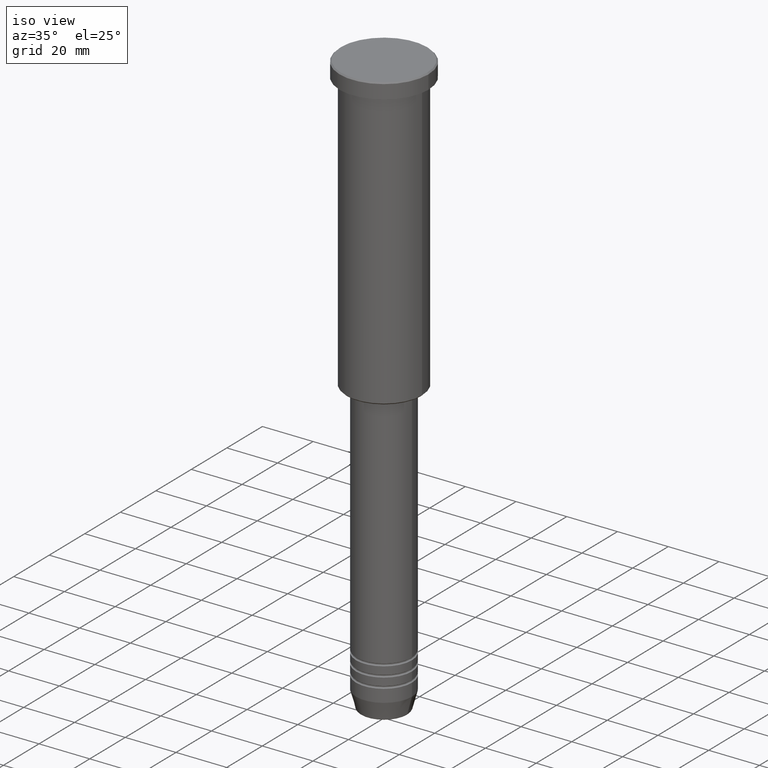
[diagram: clean part render]
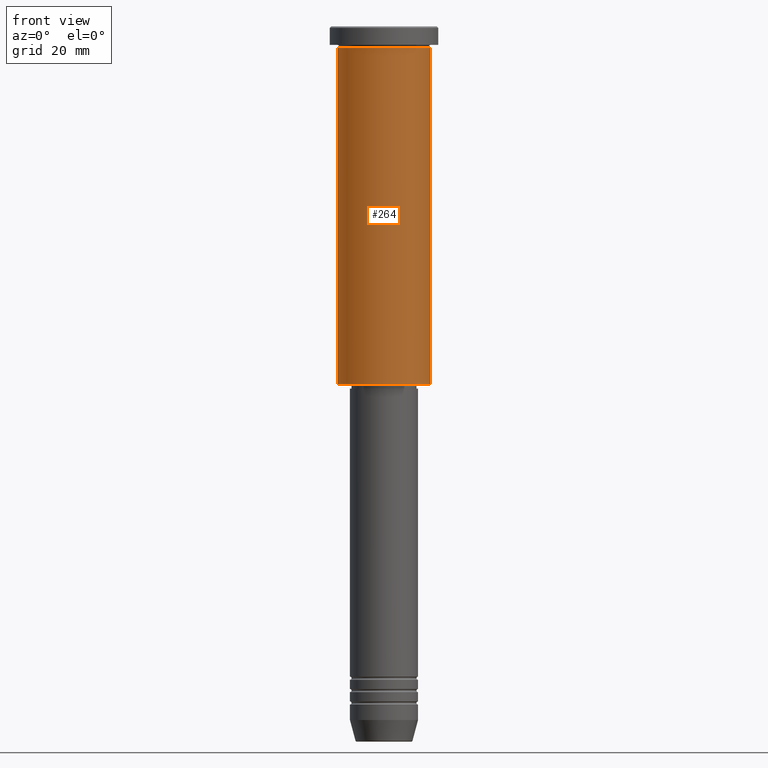
[diagram: tour spotlight — one face highlighted and labeled with its STEP entity id]
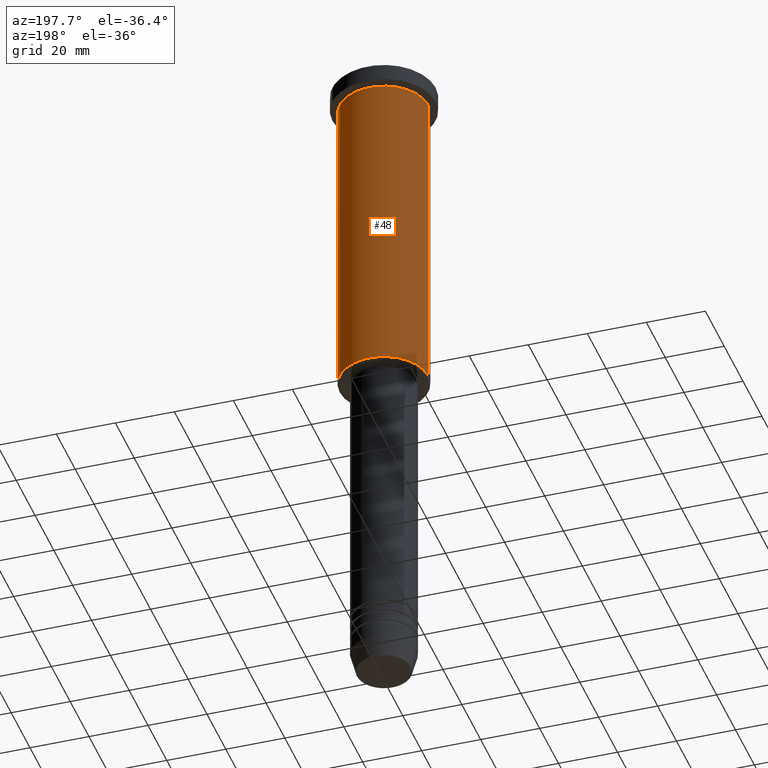
[diagram: tour spotlight — one face highlighted and labeled with its STEP entity id]
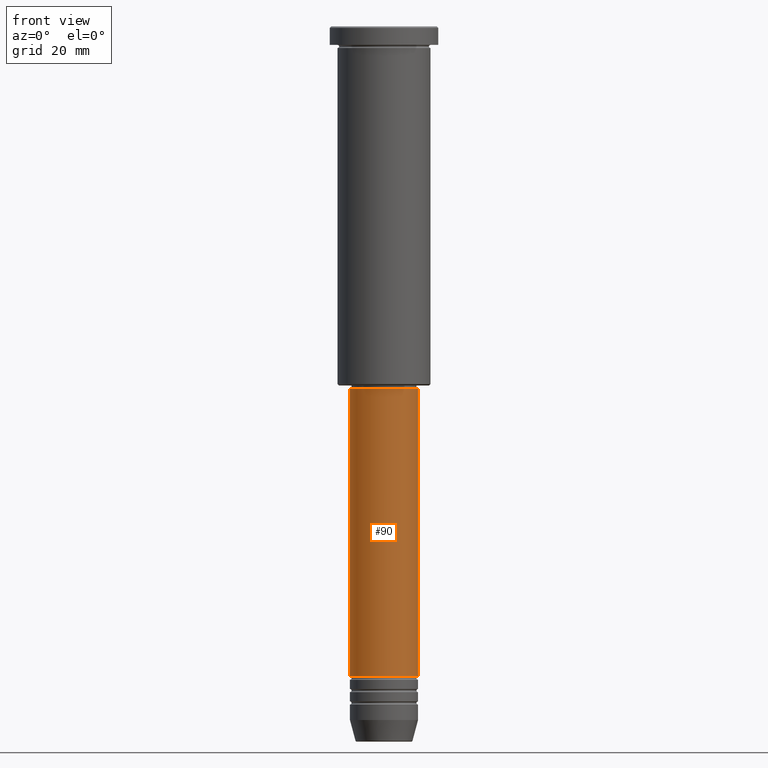
[diagram: tour spotlight — one face highlighted and labeled with its STEP entity id]
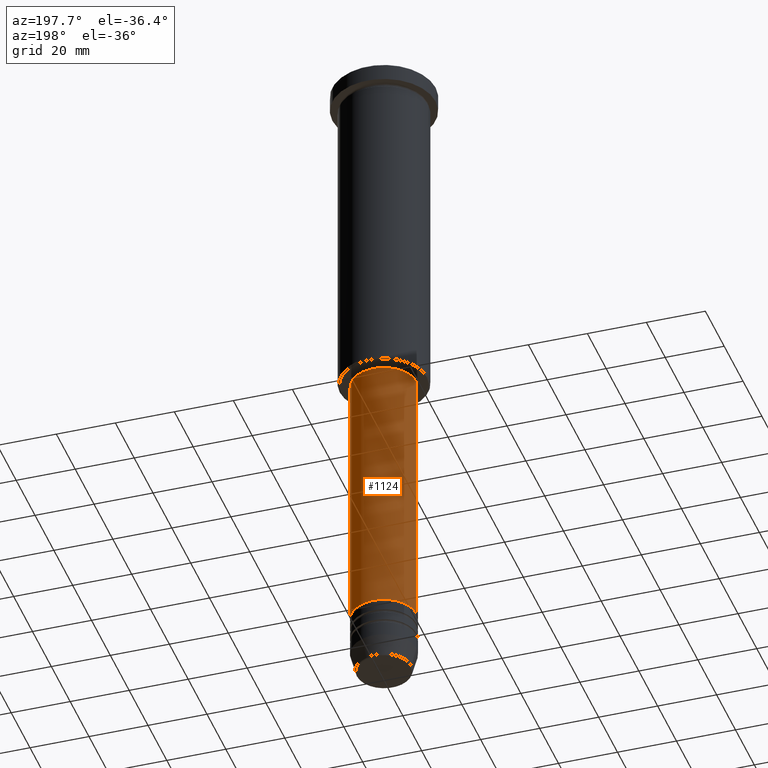
[diagram: tour spotlight — one face highlighted and labeled with its STEP entity id]
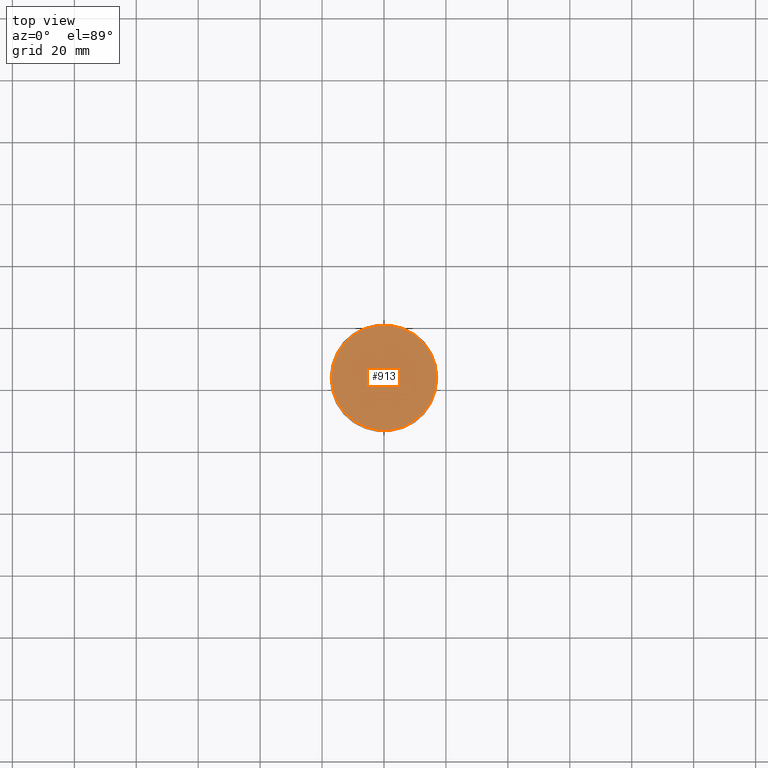
[diagram: tour spotlight — one face highlighted and labeled with its STEP entity id]
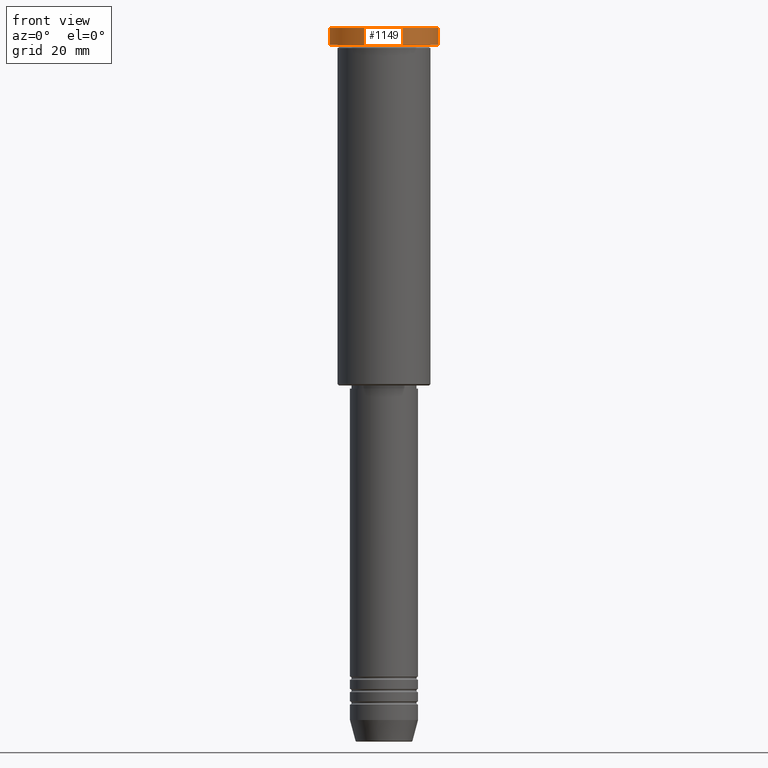
[diagram: tour spotlight — one face highlighted and labeled with its STEP entity id]
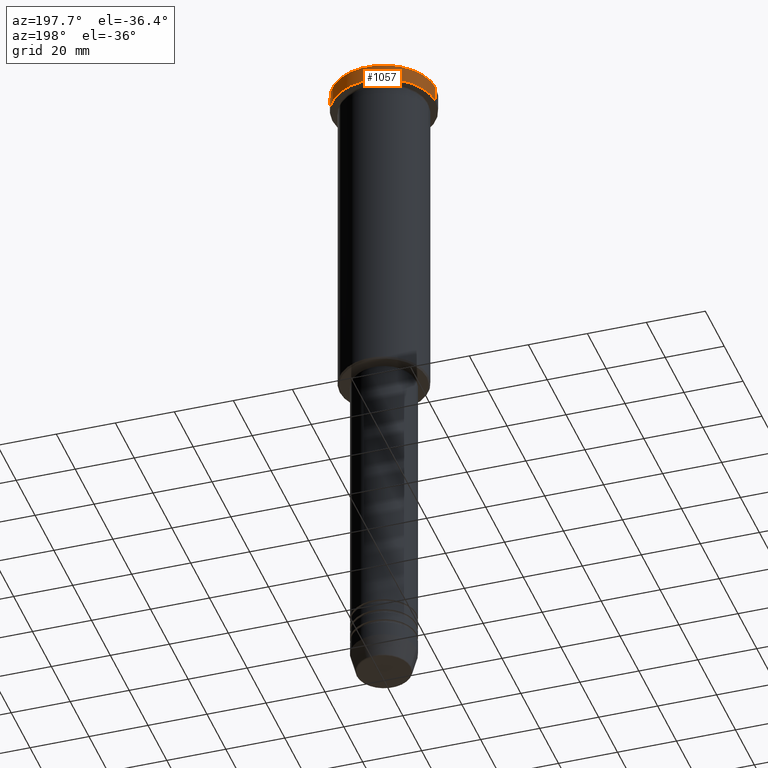
[diagram: tour spotlight — one face highlighted and labeled with its STEP entity id]
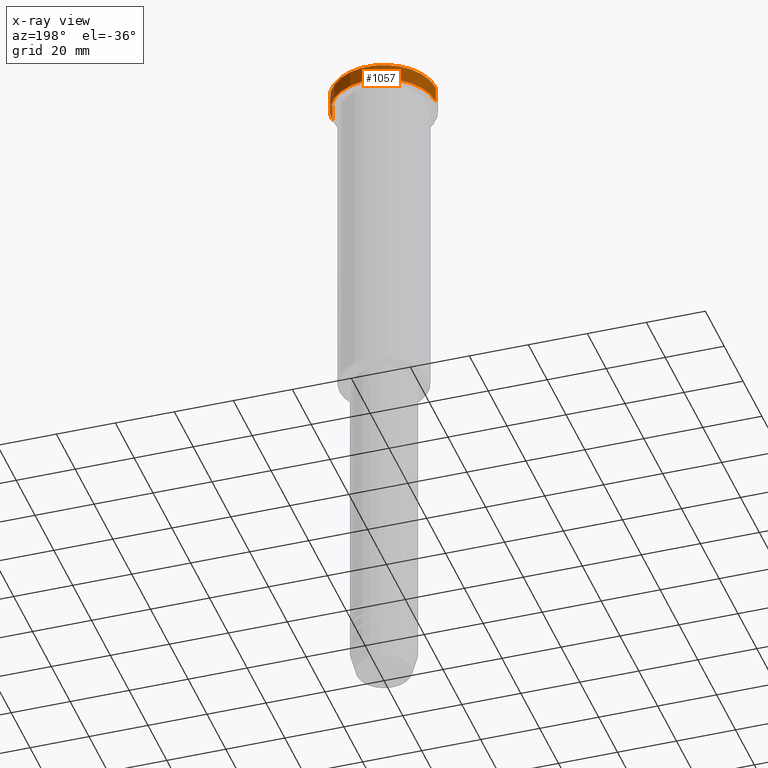
[diagram: x-ray of the same camera — body ghosted, this tour face saturated]
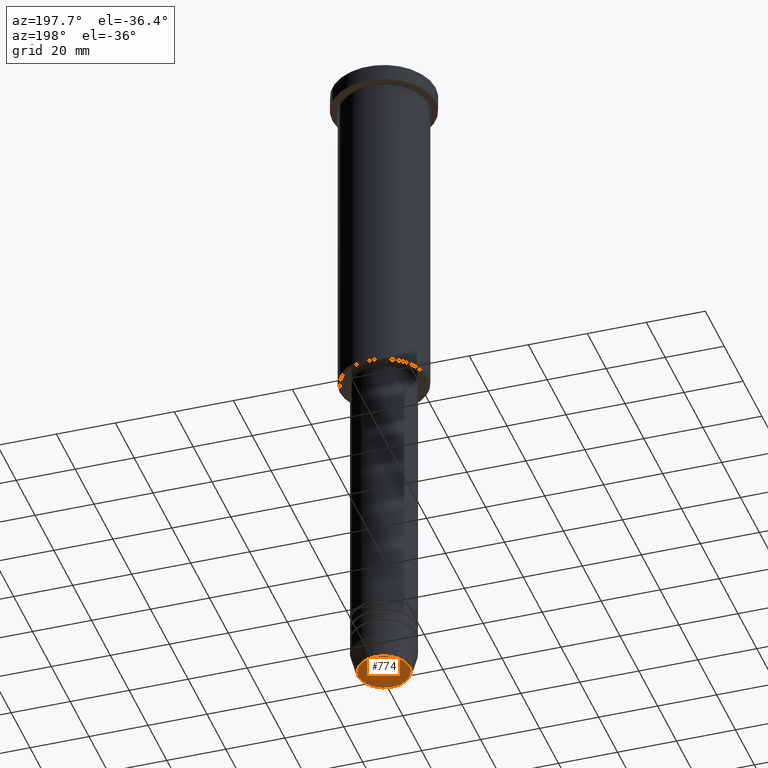
[diagram: tour spotlight — one face highlighted and labeled with its STEP entity id]
A machine part: a face-by-face anatomy tour. The part has 43 B-rep faces; the first image is the clean iso view, then the 8 largest visible faces are spotlighted one at a time (largest first), each with its STEP entity span.

Face 1 — front view, entity #264. In plain terms, the highlighted cylindrical surface (partial cylindrical patch) has radius 15 mm, axis along (-0, -0, 1).
Definition (entity closure, byte-faithful):
#30 = ORIENTED_EDGE ( 'NONE', *, *, #914, .T. ) ;
#60 = ORIENTED_EDGE ( 'NONE', *, *, #135, .F. ) ;
#66 = DIRECTION ( 'NONE',  ( 1.000000000000000000, 0.000000000000000000, 0.000000000000000000 ) ) ;
#101 = DIRECTION ( 'NONE',  ( 1.000000000000000000, 0.000000000000000000, 0.000000000000000000 ) ) ;
#117 = LINE ( 'NONE', #792, #209 ) ;
#135 = EDGE_CURVE ( 'NONE', #504, #207, #117, .T. ) ;
#207 = VERTEX_POINT ( 'NONE', #684 ) ;
#209 = VECTOR ( 'NONE', #862, 1000.000000000000000 ) ;
#213 = AXIS2_PLACEMENT_3D ( 'NONE', #466, #873, #1024 ) ;
#264 = ADVANCED_FACE ( 'NONE', ( #519 ), #906, .T. ) ;
#326 = ORIENTED_EDGE ( 'NONE', *, *, #907, .T. ) ;
#328 = CIRCLE ( 'NONE', #213, 15.00000000000000000 ) ;
#357 = AXIS2_PLACEMENT_3D ( 'NONE', #706, #984, #66 ) ;
#422 = EDGE_CURVE ( 'NONE', #207, #1153, #1068, .T. ) ;
#466 = CARTESIAN_POINT ( 'NONE',  ( 0.000000000000000000, 0.000000000000000000, -115.5000000000000000 ) ) ;
#485 = LINE ( 'NONE', #771, #679 ) ;
#487 = ORIENTED_EDGE ( 'NONE', *, *, #422, .F. ) ;
#504 = VERTEX_POINT ( 'NONE', #687 ) ;
#519 = FACE_OUTER_BOUND ( 'NONE', #978, .T. ) ;
#649 = DIRECTION ( 'NONE',  ( -0.000000000000000000, -0.000000000000000000, 1.000000000000000000 ) ) ;
#679 = VECTOR ( 'NONE', #1143, 1000.000000000000000 ) ;
#684 = CARTESIAN_POINT ( 'NONE',  ( -15.00000000000000000, 1.836970198721029589E-15, -6.999999999999995559 ) ) ;
#687 = CARTESIAN_POINT ( 'NONE',  ( -15.00000000000000000, 1.836970198721029589E-15, -115.5000000000000000 ) ) ;
#706 = CARTESIAN_POINT ( 'NONE',  ( 0.000000000000000000, 0.000000000000000000, 0.000000000000000000 ) ) ;
#771 = CARTESIAN_POINT ( 'NONE',  ( 15.00000000000000000, 0.000000000000000000, 0.000000000000000000 ) ) ;
#792 = CARTESIAN_POINT ( 'NONE',  ( -15.00000000000000000, 1.836970198721029589E-15, 0.000000000000000000 ) ) ;
#862 = DIRECTION ( 'NONE',  ( -0.000000000000000000, -0.000000000000000000, 1.000000000000000000 ) ) ;
#873 = DIRECTION ( 'NONE',  ( -0.000000000000000000, -0.000000000000000000, 1.000000000000000000 ) ) ;
#904 = CARTESIAN_POINT ( 'NONE',  ( 15.00000000000000000, 0.000000000000000000, -115.5000000000000000 ) ) ;
#906 = CYLINDRICAL_SURFACE ( 'NONE', #357, 15.00000000000000000 ) ;
#907 = EDGE_CURVE ( 'NONE', #1139, #1153, #485, .T. ) ;
#914 = EDGE_CURVE ( 'NONE', #504, #1139, #328, .T. ) ;
#978 = EDGE_LOOP ( 'NONE', ( #60, #30, #326, #487 ) ) ;
#984 = DIRECTION ( 'NONE',  ( -0.000000000000000000, -0.000000000000000000, 1.000000000000000000 ) ) ;
#1022 = CARTESIAN_POINT ( 'NONE',  ( 0.000000000000000000, 0.000000000000000000, -6.999999999999995559 ) ) ;
#1024 = DIRECTION ( 'NONE',  ( -1.000000000000000000, 0.000000000000000000, 0.000000000000000000 ) ) ;
#1068 = CIRCLE ( 'NONE', #1090, 15.00000000000000000 ) ;
#1090 = AXIS2_PLACEMENT_3D ( 'NONE', #1022, #649, #101 ) ;
#1139 = VERTEX_POINT ( 'NONE', #904 ) ;
#1143 = DIRECTION ( 'NONE',  ( -0.000000000000000000, -0.000000000000000000, 1.000000000000000000 ) ) ;
#1153 = VERTEX_POINT ( 'NONE', #1179 ) ;
#1179 = CARTESIAN_POINT ( 'NONE',  ( 15.00000000000000000, 0.000000000000000000, -6.999999999999995559 ) ) ;

Face 2 — auxiliary view, entity #48. In plain terms, the highlighted cylindrical surface (partial cylindrical patch) has radius 15 mm, axis along (-0, -0, 1).
Definition (entity closure, byte-faithful):
#3 = DIRECTION ( 'NONE',  ( -0.000000000000000000, -0.000000000000000000, 1.000000000000000000 ) ) ;
#48 = ADVANCED_FACE ( 'NONE', ( #845 ), #198, .T. ) ;
#51 = EDGE_CURVE ( 'NONE', #1153, #207, #1074, .T. ) ;
#81 = ORIENTED_EDGE ( 'NONE', *, *, #471, .T. ) ;
#117 = LINE ( 'NONE', #792, #209 ) ;
#135 = EDGE_CURVE ( 'NONE', #504, #207, #117, .T. ) ;
#184 = CARTESIAN_POINT ( 'NONE',  ( 0.000000000000000000, 0.000000000000000000, 0.000000000000000000 ) ) ;
#198 = CYLINDRICAL_SURFACE ( 'NONE', #787, 15.00000000000000000 ) ;
#207 = VERTEX_POINT ( 'NONE', #684 ) ;
#209 = VECTOR ( 'NONE', #862, 1000.000000000000000 ) ;
#365 = DIRECTION ( 'NONE',  ( 1.000000000000000000, 0.000000000000000000, 0.000000000000000000 ) ) ;
#449 = CARTESIAN_POINT ( 'NONE',  ( 0.000000000000000000, 0.000000000000000000, -6.999999999999995559 ) ) ;
#468 = DIRECTION ( 'NONE',  ( -0.000000000000000000, -0.000000000000000000, 1.000000000000000000 ) ) ;
#471 = EDGE_CURVE ( 'NONE', #1139, #504, #842, .T. ) ;
#477 = AXIS2_PLACEMENT_3D ( 'NONE', #1013, #564, #859 ) ;
#485 = LINE ( 'NONE', #771, #679 ) ;
#504 = VERTEX_POINT ( 'NONE', #687 ) ;
#528 = ORIENTED_EDGE ( 'NONE', *, *, #907, .F. ) ;
#552 = DIRECTION ( 'NONE',  ( 1.000000000000000000, 0.000000000000000000, 0.000000000000000000 ) ) ;
#564 = DIRECTION ( 'NONE',  ( -0.000000000000000000, -0.000000000000000000, 1.000000000000000000 ) ) ;
#594 = EDGE_LOOP ( 'NONE', ( #81, #878, #1014, #528 ) ) ;
#679 = VECTOR ( 'NONE', #1143, 1000.000000000000000 ) ;
#684 = CARTESIAN_POINT ( 'NONE',  ( -15.00000000000000000, 1.836970198721029589E-15, -6.999999999999995559 ) ) ;
#687 = CARTESIAN_POINT ( 'NONE',  ( -15.00000000000000000, 1.836970198721029589E-15, -115.5000000000000000 ) ) ;
#709 = AXIS2_PLACEMENT_3D ( 'NONE', #449, #3, #365 ) ;
#771 = CARTESIAN_POINT ( 'NONE',  ( 15.00000000000000000, 0.000000000000000000, 0.000000000000000000 ) ) ;
#787 = AXIS2_PLACEMENT_3D ( 'NONE', #184, #468, #552 ) ;
#792 = CARTESIAN_POINT ( 'NONE',  ( -15.00000000000000000, 1.836970198721029589E-15, 0.000000000000000000 ) ) ;
#842 = CIRCLE ( 'NONE', #477, 15.00000000000000000 ) ;
#845 = FACE_OUTER_BOUND ( 'NONE', #594, .T. ) ;
#859 = DIRECTION ( 'NONE',  ( -1.000000000000000000, 0.000000000000000000, 0.000000000000000000 ) ) ;
#862 = DIRECTION ( 'NONE',  ( -0.000000000000000000, -0.000000000000000000, 1.000000000000000000 ) ) ;
#878 = ORIENTED_EDGE ( 'NONE', *, *, #135, .T. ) ;
#904 = CARTESIAN_POINT ( 'NONE',  ( 15.00000000000000000, 0.000000000000000000, -115.5000000000000000 ) ) ;
#907 = EDGE_CURVE ( 'NONE', #1139, #1153, #485, .T. ) ;
#1013 = CARTESIAN_POINT ( 'NONE',  ( 0.000000000000000000, 0.000000000000000000, -115.5000000000000000 ) ) ;
#1014 = ORIENTED_EDGE ( 'NONE', *, *, #51, .F. ) ;
#1074 = CIRCLE ( 'NONE', #709, 15.00000000000000000 ) ;
#1139 = VERTEX_POINT ( 'NONE', #904 ) ;
#1143 = DIRECTION ( 'NONE',  ( -0.000000000000000000, -0.000000000000000000, 1.000000000000000000 ) ) ;
#1153 = VERTEX_POINT ( 'NONE', #1179 ) ;
#1179 = CARTESIAN_POINT ( 'NONE',  ( 15.00000000000000000, 0.000000000000000000, -6.999999999999995559 ) ) ;

Face 3 — front view, entity #90. In plain terms, the highlighted cylindrical surface (edge-blend (fillet) strip) has radius 11 mm, axis along (-0, -0, 1).
Definition (entity closure, byte-faithful):
#22 = DIRECTION ( 'NONE',  ( -0.000000000000000000, -0.000000000000000000, 1.000000000000000000 ) ) ;
#36 = EDGE_CURVE ( 'NONE', #875, #559, #737, .T. ) ;
#43 = AXIS2_PLACEMENT_3D ( 'NONE', #1111, #549, #651 ) ;
#59 = ORIENTED_EDGE ( 'NONE', *, *, #505, .T. ) ;
#74 = VECTOR ( 'NONE', #22, 1000.000000000000000 ) ;
#83 = EDGE_CURVE ( 'NONE', #559, #352, #289, .T. ) ;
#90 = ADVANCED_FACE ( 'NONE', ( #1009 ), #278, .T. ) ;
#111 = CARTESIAN_POINT ( 'NONE',  ( -11.00000000000000000, 1.347111479062088405E-15, 0.000000000000000000 ) ) ;
#116 = EDGE_LOOP ( 'NONE', ( #798, #59, #229, #1175 ) ) ;
#180 = CIRCLE ( 'NONE', #1010, 11.00000000000000000 ) ;
#204 = DIRECTION ( 'NONE',  ( -0.000000000000000000, -0.000000000000000000, 1.000000000000000000 ) ) ;
#219 = AXIS2_PLACEMENT_3D ( 'NONE', #353, #762, #1126 ) ;
#226 = CARTESIAN_POINT ( 'NONE',  ( 0.000000000000000000, 0.000000000000000000, -209.9999999999999432 ) ) ;
#228 = EDGE_CURVE ( 'NONE', #299, #352, #1038, .T. ) ;
#229 = ORIENTED_EDGE ( 'NONE', *, *, #228, .T. ) ;
#278 = CYLINDRICAL_SURFACE ( 'NONE', #43, 11.00000000000000000 ) ;
#289 = CIRCLE ( 'NONE', #219, 11.00000000000000000 ) ;
#299 = VERTEX_POINT ( 'NONE', #538 ) ;
#352 = VERTEX_POINT ( 'NONE', #1181 ) ;
#353 = CARTESIAN_POINT ( 'NONE',  ( 0.000000000000000000, 0.000000000000000000, -117.0000000000000711 ) ) ;
#393 = CARTESIAN_POINT ( 'NONE',  ( 11.00000000000000000, 0.000000000000000000, 0.000000000000000000 ) ) ;
#505 = EDGE_CURVE ( 'NONE', #875, #299, #180, .T. ) ;
#538 = CARTESIAN_POINT ( 'NONE',  ( 11.00000000000000000, 0.000000000000000000, -209.9999999999999432 ) ) ;
#549 = DIRECTION ( 'NONE',  ( -0.000000000000000000, -0.000000000000000000, 1.000000000000000000 ) ) ;
#559 = VERTEX_POINT ( 'NONE', #1037 ) ;
#651 = DIRECTION ( 'NONE',  ( 1.000000000000000000, 0.000000000000000000, 0.000000000000000000 ) ) ;
#674 = DIRECTION ( 'NONE',  ( 1.000000000000000000, 0.000000000000000000, 0.000000000000000000 ) ) ;
#721 = VECTOR ( 'NONE', #204, 1000.000000000000000 ) ;
#737 = LINE ( 'NONE', #111, #74 ) ;
#762 = DIRECTION ( 'NONE',  ( -0.000000000000000000, -0.000000000000000000, 1.000000000000000000 ) ) ;
#798 = ORIENTED_EDGE ( 'NONE', *, *, #36, .F. ) ;
#875 = VERTEX_POINT ( 'NONE', #1128 ) ;
#1009 = FACE_OUTER_BOUND ( 'NONE', #116, .T. ) ;
#1010 = AXIS2_PLACEMENT_3D ( 'NONE', #226, #1122, #674 ) ;
#1037 = CARTESIAN_POINT ( 'NONE',  ( -11.00000000000000000, 1.347111479062088405E-15, -117.0000000000000711 ) ) ;
#1038 = LINE ( 'NONE', #393, #721 ) ;
#1111 = CARTESIAN_POINT ( 'NONE',  ( 0.000000000000000000, 0.000000000000000000, 0.000000000000000000 ) ) ;
#1122 = DIRECTION ( 'NONE',  ( -0.000000000000000000, -0.000000000000000000, 1.000000000000000000 ) ) ;
#1126 = DIRECTION ( 'NONE',  ( 1.000000000000000000, 0.000000000000000000, 0.000000000000000000 ) ) ;
#1128 = CARTESIAN_POINT ( 'NONE',  ( -11.00000000000000000, 1.347111479062088405E-15, -209.9999999999999432 ) ) ;
#1175 = ORIENTED_EDGE ( 'NONE', *, *, #83, .F. ) ;
#1181 = CARTESIAN_POINT ( 'NONE',  ( 11.00000000000000000, 0.000000000000000000, -117.0000000000000711 ) ) ;

Face 4 — auxiliary view, entity #1124. In plain terms, the highlighted cylindrical surface (edge-blend (fillet) strip) has radius 11 mm, axis along (-0, -0, 1).
Definition (entity closure, byte-faithful):
#22 = DIRECTION ( 'NONE',  ( -0.000000000000000000, -0.000000000000000000, 1.000000000000000000 ) ) ;
#36 = EDGE_CURVE ( 'NONE', #875, #559, #737, .T. ) ;
#57 = FACE_OUTER_BOUND ( 'NONE', #1088, .T. ) ;
#63 = DIRECTION ( 'NONE',  ( 1.000000000000000000, 0.000000000000000000, 0.000000000000000000 ) ) ;
#74 = VECTOR ( 'NONE', #22, 1000.000000000000000 ) ;
#84 = CARTESIAN_POINT ( 'NONE',  ( 0.000000000000000000, 0.000000000000000000, 0.000000000000000000 ) ) ;
#111 = CARTESIAN_POINT ( 'NONE',  ( -11.00000000000000000, 1.347111479062088405E-15, 0.000000000000000000 ) ) ;
#199 = AXIS2_PLACEMENT_3D ( 'NONE', #515, #896, #63 ) ;
#204 = DIRECTION ( 'NONE',  ( -0.000000000000000000, -0.000000000000000000, 1.000000000000000000 ) ) ;
#224 = DIRECTION ( 'NONE',  ( -0.000000000000000000, -0.000000000000000000, 1.000000000000000000 ) ) ;
#228 = EDGE_CURVE ( 'NONE', #299, #352, #1038, .T. ) ;
#235 = ORIENTED_EDGE ( 'NONE', *, *, #261, .T. ) ;
#261 = EDGE_CURVE ( 'NONE', #299, #875, #741, .T. ) ;
#271 = ORIENTED_EDGE ( 'NONE', *, *, #1160, .F. ) ;
#299 = VERTEX_POINT ( 'NONE', #538 ) ;
#331 = CIRCLE ( 'NONE', #199, 11.00000000000000000 ) ;
#352 = VERTEX_POINT ( 'NONE', #1181 ) ;
#392 = ORIENTED_EDGE ( 'NONE', *, *, #36, .T. ) ;
#393 = CARTESIAN_POINT ( 'NONE',  ( 11.00000000000000000, 0.000000000000000000, 0.000000000000000000 ) ) ;
#515 = CARTESIAN_POINT ( 'NONE',  ( 0.000000000000000000, 0.000000000000000000, -117.0000000000000711 ) ) ;
#538 = CARTESIAN_POINT ( 'NONE',  ( 11.00000000000000000, 0.000000000000000000, -209.9999999999999432 ) ) ;
#559 = VERTEX_POINT ( 'NONE', #1037 ) ;
#588 = DIRECTION ( 'NONE',  ( 1.000000000000000000, 0.000000000000000000, 0.000000000000000000 ) ) ;
#601 = DIRECTION ( 'NONE',  ( 1.000000000000000000, 0.000000000000000000, 0.000000000000000000 ) ) ;
#615 = DIRECTION ( 'NONE',  ( -0.000000000000000000, -0.000000000000000000, 1.000000000000000000 ) ) ;
#638 = AXIS2_PLACEMENT_3D ( 'NONE', #1056, #224, #588 ) ;
#721 = VECTOR ( 'NONE', #204, 1000.000000000000000 ) ;
#737 = LINE ( 'NONE', #111, #74 ) ;
#741 = CIRCLE ( 'NONE', #638, 11.00000000000000000 ) ;
#747 = AXIS2_PLACEMENT_3D ( 'NONE', #84, #615, #601 ) ;
#791 = ORIENTED_EDGE ( 'NONE', *, *, #228, .F. ) ;
#875 = VERTEX_POINT ( 'NONE', #1128 ) ;
#896 = DIRECTION ( 'NONE',  ( -0.000000000000000000, -0.000000000000000000, 1.000000000000000000 ) ) ;
#1037 = CARTESIAN_POINT ( 'NONE',  ( -11.00000000000000000, 1.347111479062088405E-15, -117.0000000000000711 ) ) ;
#1038 = LINE ( 'NONE', #393, #721 ) ;
#1056 = CARTESIAN_POINT ( 'NONE',  ( 0.000000000000000000, 0.000000000000000000, -209.9999999999999432 ) ) ;
#1083 = CYLINDRICAL_SURFACE ( 'NONE', #747, 11.00000000000000000 ) ;
#1088 = EDGE_LOOP ( 'NONE', ( #235, #392, #271, #791 ) ) ;
#1124 = ADVANCED_FACE ( 'NONE', ( #57 ), #1083, .T. ) ;
#1128 = CARTESIAN_POINT ( 'NONE',  ( -11.00000000000000000, 1.347111479062088405E-15, -209.9999999999999432 ) ) ;
#1160 = EDGE_CURVE ( 'NONE', #352, #559, #331, .T. ) ;
#1181 = CARTESIAN_POINT ( 'NONE',  ( 11.00000000000000000, 0.000000000000000000, -117.0000000000000711 ) ) ;

Face 5 — top view, entity #913. In plain terms, the highlighted planar face has unit normal (0, -0, 1).
Definition (entity closure, byte-faithful):
#41 = EDGE_CURVE ( 'NONE', #693, #887, #828, .T. ) ;
#175 = EDGE_CURVE ( 'NONE', #887, #693, #990, .T. ) ;
#249 = ORIENTED_EDGE ( 'NONE', *, *, #175, .T. ) ;
#272 = CARTESIAN_POINT ( 'NONE',  ( 0.000000000000000000, 0.000000000000000000, 0.000000000000000000 ) ) ;
#296 = DIRECTION ( 'NONE',  ( 1.000000000000000000, 0.000000000000000000, 0.000000000000000000 ) ) ;
#302 = CARTESIAN_POINT ( 'NONE',  ( 17.00000000000004263, 2.112515728529187222E-15, 0.000000000000000000 ) ) ;
#308 = AXIS2_PLACEMENT_3D ( 'NONE', #272, #369, #657 ) ;
#322 = CARTESIAN_POINT ( 'NONE',  ( -17.00000000000004263, 0.000000000000000000, 0.000000000000000000 ) ) ;
#369 = DIRECTION ( 'NONE',  ( -0.000000000000000000, -0.000000000000000000, 1.000000000000000000 ) ) ;
#397 = AXIS2_PLACEMENT_3D ( 'NONE', #853, #1051, #296 ) ;
#592 = CARTESIAN_POINT ( 'NONE',  ( 0.000000000000000000, 0.000000000000000000, 0.000000000000000000 ) ) ;
#657 = DIRECTION ( 'NONE',  ( 1.000000000000000000, 0.000000000000000000, 0.000000000000000000 ) ) ;
#675 = DIRECTION ( 'NONE',  ( 1.000000000000000000, 0.000000000000000000, 0.000000000000000000 ) ) ;
#693 = VERTEX_POINT ( 'NONE', #322 ) ;
#767 = EDGE_LOOP ( 'NONE', ( #1030, #249 ) ) ;
#828 = CIRCLE ( 'NONE', #308, 17.00000000000004263 ) ;
#853 = CARTESIAN_POINT ( 'NONE',  ( 0.000000000000000000, 0.000000000000000000, 0.000000000000000000 ) ) ;
#857 = PLANE ( 'NONE',  #397 ) ;
#887 = VERTEX_POINT ( 'NONE', #302 ) ;
#913 = ADVANCED_FACE ( 'NONE', ( #1132 ), #857, .T. ) ;
#918 = AXIS2_PLACEMENT_3D ( 'NONE', #592, #971, #675 ) ;
#971 = DIRECTION ( 'NONE',  ( -0.000000000000000000, -0.000000000000000000, 1.000000000000000000 ) ) ;
#990 = CIRCLE ( 'NONE', #918, 17.00000000000004263 ) ;
#1030 = ORIENTED_EDGE ( 'NONE', *, *, #41, .T. ) ;
#1051 = DIRECTION ( 'NONE',  ( 0.000000000000000000, -0.000000000000000000, 1.000000000000000000 ) ) ;
#1132 = FACE_OUTER_BOUND ( 'NONE', #767, .T. ) ;

Face 6 — front view, entity #1149. In plain terms, the highlighted cylindrical surface (partial cylindrical patch) has radius 17.5 mm, axis along (-0, -0, 1).
Definition (entity closure, byte-faithful):
#71 = CARTESIAN_POINT ( 'NONE',  ( 0.000000000000000000, 0.000000000000000000, -0.4999999999999449329 ) ) ;
#72 = CIRCLE ( 'NONE', #1034, 17.50000000000000000 ) ;
#155 = DIRECTION ( 'NONE',  ( 1.000000000000000000, 0.000000000000000000, 0.000000000000000000 ) ) ;
#191 = ORIENTED_EDGE ( 'NONE', *, *, #1094, .T. ) ;
#223 = ORIENTED_EDGE ( 'NONE', *, *, #1107, .T. ) ;
#231 = DIRECTION ( 'NONE',  ( 0.000000000000000000, 0.000000000000000000, -1.000000000000000000 ) ) ;
#234 = CIRCLE ( 'NONE', #921, 17.50000000000000000 ) ;
#257 = CARTESIAN_POINT ( 'NONE',  ( 0.000000000000000000, 0.000000000000000000, 0.000000000000000000 ) ) ;
#358 = VERTEX_POINT ( 'NONE', #363 ) ;
#363 = CARTESIAN_POINT ( 'NONE',  ( -17.50000000000000000, 2.143131898507868248E-15, -0.4999999999999449329 ) ) ;
#403 = DIRECTION ( 'NONE',  ( -0.000000000000000000, -0.000000000000000000, 1.000000000000000000 ) ) ;
#410 = VERTEX_POINT ( 'NONE', #551 ) ;
#419 = VERTEX_POINT ( 'NONE', #922 ) ;
#433 = CARTESIAN_POINT ( 'NONE',  ( -17.50000000000000000, 2.143131898507868248E-15, 0.000000000000000000 ) ) ;
#438 = LINE ( 'NONE', #622, #604 ) ;
#473 = ORIENTED_EDGE ( 'NONE', *, *, #1019, .T. ) ;
#506 = DIRECTION ( 'NONE',  ( -0.000000000000000000, -0.000000000000000000, 1.000000000000000000 ) ) ;
#508 = DIRECTION ( 'NONE',  ( -0.000000000000000000, -0.000000000000000000, 1.000000000000000000 ) ) ;
#551 = CARTESIAN_POINT ( 'NONE',  ( -17.50000000000000000, 2.143131898507868248E-15, -5.999999999999995559 ) ) ;
#595 = EDGE_CURVE ( 'NONE', #410, #358, #1150, .T. ) ;
#597 = CARTESIAN_POINT ( 'NONE',  ( 0.000000000000000000, 0.000000000000000000, -5.999999999999995559 ) ) ;
#604 = VECTOR ( 'NONE', #508, 1000.000000000000000 ) ;
#610 = CYLINDRICAL_SURFACE ( 'NONE', #786, 17.50000000000000000 ) ;
#618 = CARTESIAN_POINT ( 'NONE',  ( 17.50000000000000000, 0.000000000000000000, -0.4999999999999449329 ) ) ;
#622 = CARTESIAN_POINT ( 'NONE',  ( 17.50000000000000000, 0.000000000000000000, 0.000000000000000000 ) ) ;
#650 = ORIENTED_EDGE ( 'NONE', *, *, #595, .F. ) ;
#786 = AXIS2_PLACEMENT_3D ( 'NONE', #257, #821, #810 ) ;
#795 = DIRECTION ( 'NONE',  ( 1.000000000000000000, 0.000000000000000000, 0.000000000000000000 ) ) ;
#810 = DIRECTION ( 'NONE',  ( 1.000000000000000000, 0.000000000000000000, 0.000000000000000000 ) ) ;
#821 = DIRECTION ( 'NONE',  ( -0.000000000000000000, -0.000000000000000000, 1.000000000000000000 ) ) ;
#921 = AXIS2_PLACEMENT_3D ( 'NONE', #597, #506, #795 ) ;
#922 = CARTESIAN_POINT ( 'NONE',  ( 17.50000000000000000, 0.000000000000000000, -5.999999999999995559 ) ) ;
#965 = VERTEX_POINT ( 'NONE', #618 ) ;
#968 = EDGE_LOOP ( 'NONE', ( #650, #473, #191, #223 ) ) ;
#991 = VECTOR ( 'NONE', #403, 1000.000000000000000 ) ;
#1019 = EDGE_CURVE ( 'NONE', #410, #419, #234, .T. ) ;
#1034 = AXIS2_PLACEMENT_3D ( 'NONE', #71, #231, #155 ) ;
#1094 = EDGE_CURVE ( 'NONE', #419, #965, #438, .T. ) ;
#1107 = EDGE_CURVE ( 'NONE', #965, #358, #72, .T. ) ;
#1149 = ADVANCED_FACE ( 'NONE', ( #1157 ), #610, .T. ) ;
#1150 = LINE ( 'NONE', #433, #991 ) ;
#1157 = FACE_OUTER_BOUND ( 'NONE', #968, .T. ) ;

Face 7 — auxiliary view, entity #1057. An x-ray twin of the same camera follows (body ghosted, this face saturated) — the face is partly hidden behind the body. In plain terms, the highlighted cylindrical surface (partial cylindrical patch) has radius 17.5 mm, axis along (-0, -0, 1).
Definition (entity closure, byte-faithful):
#75 = DIRECTION ( 'NONE',  ( 1.000000000000000000, 0.000000000000000000, 0.000000000000000000 ) ) ;
#88 = CIRCLE ( 'NONE', #764, 17.50000000000000000 ) ;
#164 = CYLINDRICAL_SURFACE ( 'NONE', #958, 17.50000000000000000 ) ;
#316 = DIRECTION ( 'NONE',  ( 1.000000000000000000, 0.000000000000000000, 0.000000000000000000 ) ) ;
#358 = VERTEX_POINT ( 'NONE', #363 ) ;
#363 = CARTESIAN_POINT ( 'NONE',  ( -17.50000000000000000, 2.143131898507868248E-15, -0.4999999999999449329 ) ) ;
#401 = CARTESIAN_POINT ( 'NONE',  ( 0.000000000000000000, 0.000000000000000000, -0.4999999999999449329 ) ) ;
#403 = DIRECTION ( 'NONE',  ( -0.000000000000000000, -0.000000000000000000, 1.000000000000000000 ) ) ;
#410 = VERTEX_POINT ( 'NONE', #551 ) ;
#419 = VERTEX_POINT ( 'NONE', #922 ) ;
#433 = CARTESIAN_POINT ( 'NONE',  ( -17.50000000000000000, 2.143131898507868248E-15, 0.000000000000000000 ) ) ;
#438 = LINE ( 'NONE', #622, #604 ) ;
#508 = DIRECTION ( 'NONE',  ( -0.000000000000000000, -0.000000000000000000, 1.000000000000000000 ) ) ;
#529 = DIRECTION ( 'NONE',  ( -0.000000000000000000, -0.000000000000000000, 1.000000000000000000 ) ) ;
#551 = CARTESIAN_POINT ( 'NONE',  ( -17.50000000000000000, 2.143131898507868248E-15, -5.999999999999995559 ) ) ;
#557 = DIRECTION ( 'NONE',  ( -0.000000000000000000, -0.000000000000000000, 1.000000000000000000 ) ) ;
#566 = EDGE_LOOP ( 'NONE', ( #569, #856, #567, #777 ) ) ;
#567 = ORIENTED_EDGE ( 'NONE', *, *, #1005, .T. ) ;
#569 = ORIENTED_EDGE ( 'NONE', *, *, #723, .T. ) ;
#595 = EDGE_CURVE ( 'NONE', #410, #358, #1150, .T. ) ;
#604 = VECTOR ( 'NONE', #508, 1000.000000000000000 ) ;
#618 = CARTESIAN_POINT ( 'NONE',  ( 17.50000000000000000, 0.000000000000000000, -0.4999999999999449329 ) ) ;
#622 = CARTESIAN_POINT ( 'NONE',  ( 17.50000000000000000, 0.000000000000000000, 0.000000000000000000 ) ) ;
#633 = CARTESIAN_POINT ( 'NONE',  ( 0.000000000000000000, 0.000000000000000000, -5.999999999999995559 ) ) ;
#660 = AXIS2_PLACEMENT_3D ( 'NONE', #633, #557, #847 ) ;
#723 = EDGE_CURVE ( 'NONE', #419, #410, #1141, .T. ) ;
#764 = AXIS2_PLACEMENT_3D ( 'NONE', #401, #789, #316 ) ;
#777 = ORIENTED_EDGE ( 'NONE', *, *, #1094, .F. ) ;
#789 = DIRECTION ( 'NONE',  ( 0.000000000000000000, 0.000000000000000000, -1.000000000000000000 ) ) ;
#847 = DIRECTION ( 'NONE',  ( 1.000000000000000000, 0.000000000000000000, 0.000000000000000000 ) ) ;
#856 = ORIENTED_EDGE ( 'NONE', *, *, #595, .T. ) ;
#922 = CARTESIAN_POINT ( 'NONE',  ( 17.50000000000000000, 0.000000000000000000, -5.999999999999995559 ) ) ;
#958 = AXIS2_PLACEMENT_3D ( 'NONE', #988, #529, #75 ) ;
#965 = VERTEX_POINT ( 'NONE', #618 ) ;
#988 = CARTESIAN_POINT ( 'NONE',  ( 0.000000000000000000, 0.000000000000000000, 0.000000000000000000 ) ) ;
#991 = VECTOR ( 'NONE', #403, 1000.000000000000000 ) ;
#1005 = EDGE_CURVE ( 'NONE', #358, #965, #88, .T. ) ;
#1057 = ADVANCED_FACE ( 'NONE', ( #1130 ), #164, .T. ) ;
#1094 = EDGE_CURVE ( 'NONE', #419, #965, #438, .T. ) ;
#1130 = FACE_OUTER_BOUND ( 'NONE', #566, .T. ) ;
#1141 = CIRCLE ( 'NONE', #660, 17.50000000000000000 ) ;
#1150 = LINE ( 'NONE', #433, #991 ) ;

Face 8 — auxiliary view, entity #774. In plain terms, the highlighted planar face has unit normal (0, -0, 1).
Definition (entity closure, byte-faithful):
#39 = VERTEX_POINT ( 'NONE', #850 ) ;
#133 = EDGE_CURVE ( 'NONE', #625, #39, #162, .T. ) ;
#150 = ORIENTED_EDGE ( 'NONE', *, *, #185, .T. ) ;
#162 = CIRCLE ( 'NONE', #760, 8.740692158992656502 ) ;
#185 = EDGE_CURVE ( 'NONE', #39, #625, #676, .T. ) ;
#186 = FACE_OUTER_BOUND ( 'NONE', #849, .T. ) ;
#362 = DIRECTION ( 'NONE',  ( 0.000000000000000000, -0.000000000000000000, 1.000000000000000000 ) ) ;
#496 = AXIS2_PLACEMENT_3D ( 'NONE', #575, #1048, #1129 ) ;
#553 = PLANE ( 'NONE',  #1049 ) ;
#575 = CARTESIAN_POINT ( 'NONE',  ( 0.000000000000000000, 0.000000000000000000, -231.0000000000000284 ) ) ;
#625 = VERTEX_POINT ( 'NONE', #724 ) ;
#676 = CIRCLE ( 'NONE', #496, 8.740692158992656502 ) ;
#724 = CARTESIAN_POINT ( 'NONE',  ( -8.740692158992656502, 1.099999016768739653E-15, -231.0000000000000284 ) ) ;
#760 = AXIS2_PLACEMENT_3D ( 'NONE', #1147, #1140, #1133 ) ;
#774 = ADVANCED_FACE ( 'NONE', ( #186 ), #553, .F. ) ;
#812 = ORIENTED_EDGE ( 'NONE', *, *, #133, .T. ) ;
#849 = EDGE_LOOP ( 'NONE', ( #150, #812 ) ) ;
#850 = CARTESIAN_POINT ( 'NONE',  ( 8.740692158992656502, 0.000000000000000000, -231.0000000000000284 ) ) ;
#963 = DIRECTION ( 'NONE',  ( 1.000000000000000000, 0.000000000000000000, 0.000000000000000000 ) ) ;
#1048 = DIRECTION ( 'NONE',  ( 0.000000000000000000, 0.000000000000000000, -1.000000000000000000 ) ) ;
#1049 = AXIS2_PLACEMENT_3D ( 'NONE', #1108, #362, #963 ) ;
#1108 = CARTESIAN_POINT ( 'NONE',  ( 0.000000000000000000, 0.000000000000000000, -231.0000000000000284 ) ) ;
#1129 = DIRECTION ( 'NONE',  ( 1.000000000000000000, 0.000000000000000000, 0.000000000000000000 ) ) ;
#1133 = DIRECTION ( 'NONE',  ( 1.000000000000000000, 0.000000000000000000, 0.000000000000000000 ) ) ;
#1140 = DIRECTION ( 'NONE',  ( 0.000000000000000000, 0.000000000000000000, -1.000000000000000000 ) ) ;
#1147 = CARTESIAN_POINT ( 'NONE',  ( 0.000000000000000000, 0.000000000000000000, -231.0000000000000284 ) ) ;